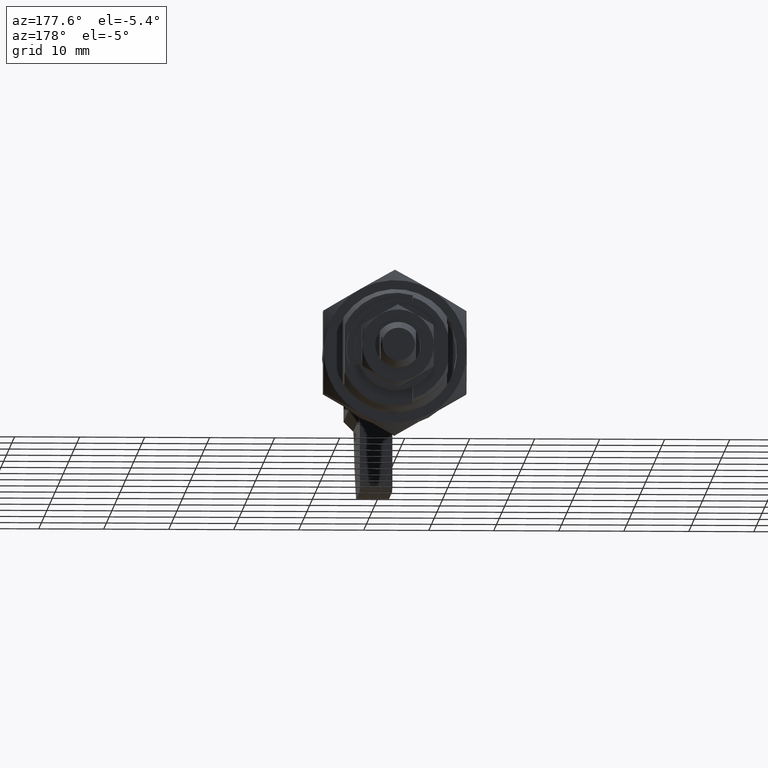
[diagram: clean part render]
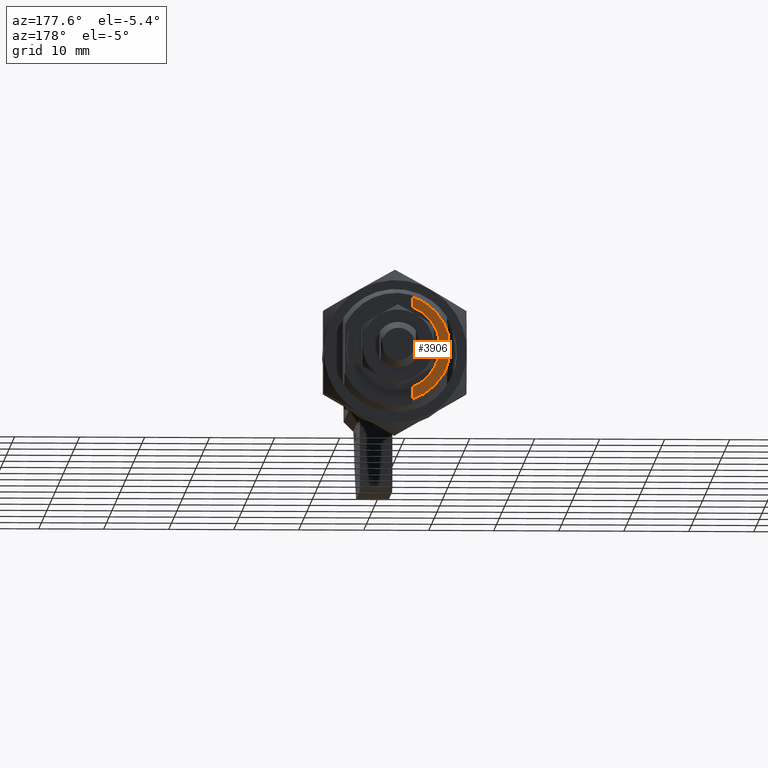
[diagram: same view with one face highlighted and labeled with its STEP entity id]
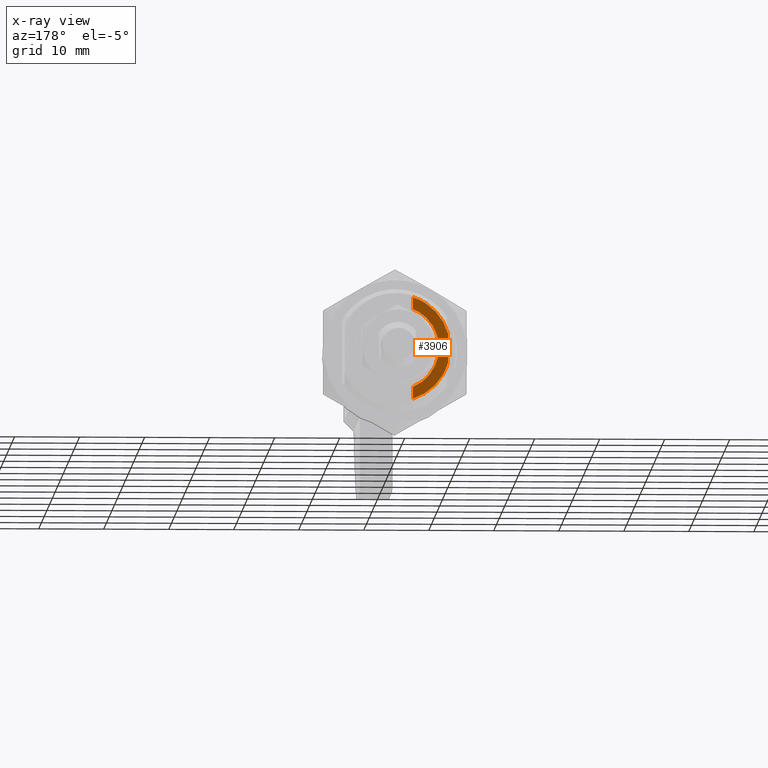
[diagram: x-ray of the same camera — body ghosted, the highlighted face saturated]
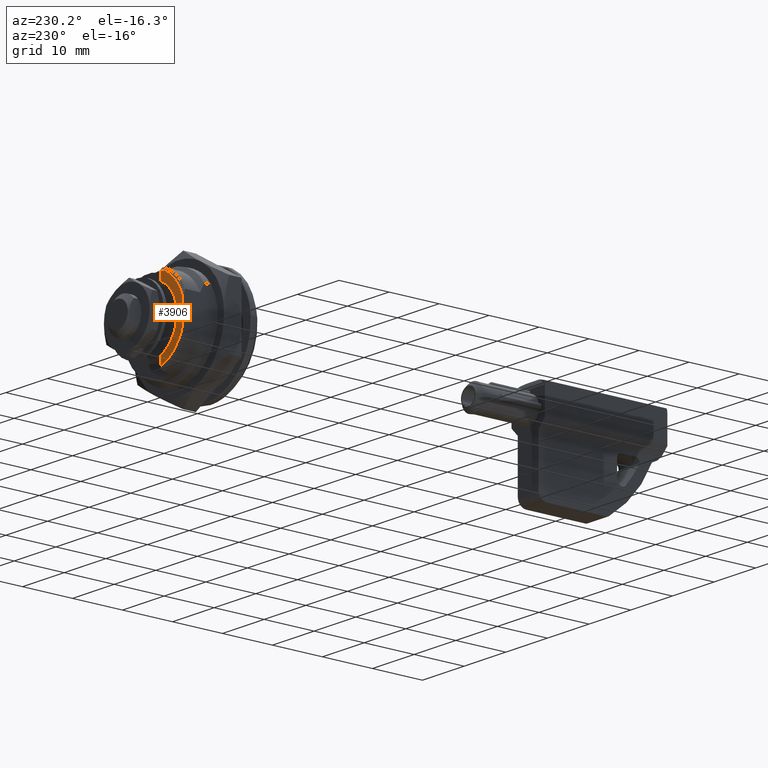
[diagram: same view with one face highlighted and labeled with its STEP entity id]
A machine part, auxiliary view. The second image highlights one B-rep face of the part: STEP entity #3906.
The next image is the same camera in x-ray: the body ghosted, the highlighted face saturated — about 0% of this face is hidden behind the body in this view.
A second angle (auxiliary view) of the same face is appended — the face is thin or edge-on in the first view.
In plain terms, the highlighted face is a freeform B-spline surface patch.
Its self-contained STEP definition (entity closure, byte-faithful):
#3747=CARTESIAN_POINT('',(-7.900000000000000,11.199999999999999,2.197726097584000));
#3748=VERTEX_POINT('',#3747);
#3771=CARTESIAN_POINT('',(-2.499999999999944,11.199999999999999,7.809609465267920));
#3772=VERTEX_POINT('',#3771);
#3780=CARTESIAN_POINT('',(-7.900000000000000,11.199999999999999,2.197726097584000));
#3781=CARTESIAN_POINT('',(-6.714097833292629,11.199999999999999,6.460599040343909));
#3782=CARTESIAN_POINT('',(-2.499999999999942,11.199999999999999,7.809609465267920));
#3790=(BOUNDED_CURVE()B_SPLINE_CURVE(2,(#3780,#3781,#3782),.UNSPECIFIED.,.F.,.U.)CURVE()GEOMETRIC_REPRESENTATION_ITEM()QUASI_UNIFORM_CURVE()RATIONAL_B_SPLINE_CURVE((1.0,0.880050996870170,1.0))REPRESENTATION_ITEM(''));
#3791=EDGE_CURVE('',#3748,#3772,#3790,.T.);
#3812=CARTESIAN_POINT('',(-2.500000000000114,11.199999999999999,-7.809609465267610));
#3813=VERTEX_POINT('',#3812);
#3836=CARTESIAN_POINT('',(-7.900000000000000,11.199999999999999,-2.197726097583745));
#3837=VERTEX_POINT('',#3836);
#3845=CARTESIAN_POINT('',(-2.500000000000114,11.199999999999999,-7.809609465267610));
#3846=CARTESIAN_POINT('',(-6.714097833292660,11.199999999999999,-6.460599040343544));
#3847=CARTESIAN_POINT('',(-7.899999999999927,11.199999999999999,-2.197726097583725));
#3855=(BOUNDED_CURVE()B_SPLINE_CURVE(2,(#3845,#3846,#3847),.UNSPECIFIED.,.F.,.U.)CURVE()GEOMETRIC_REPRESENTATION_ITEM()QUASI_UNIFORM_CURVE()RATIONAL_B_SPLINE_CURVE((1.0,0.880050996870175,1.0))REPRESENTATION_ITEM(''));
#3856=EDGE_CURVE('',#3813,#3837,#3855,.T.);
#3861=CARTESIAN_POINT('',(-2.230270010466188,11.199999999999999,-8.589789420574782));
#3862=CARTESIAN_POINT('',(-8.169730134373042,11.199999999999999,-8.589789420574782));
#3863=CARTESIAN_POINT('',(-2.230270010466188,11.199999999999999,8.589789839515191));
#3864=CARTESIAN_POINT('',(-8.169730134373042,11.199999999999999,8.589789839515191));
#3865=B_SPLINE_SURFACE_WITH_KNOTS('',1,1,((#3861,#3863),(#3862,#3864)),.UNSPECIFIED.,.F.,.F.,.U.,(2,2),(2,2),(0.0,5.939460123906853),(0.0,17.179579260089969),.UNSPECIFIED.);
#3866=CARTESIAN_POINT('',(-2.500000000000114,11.199999999999999,-5.999999999999840));
#3867=VERTEX_POINT('',#3866);
#3868=CARTESIAN_POINT('',(-2.500000000000114,11.199999999999999,-5.999999999999840));
#3869=CARTESIAN_POINT('',(-2.500000000000114,11.199999999999999,-7.809609465267610));
#3870=QUASI_UNIFORM_CURVE('',1,(#3868,#3869),.UNSPECIFIED.,.F.,.U.);
#3871=EDGE_CURVE('',#3867,#3813,#3870,.T.);
#3872=ORIENTED_EDGE('',*,*,#3871,.T.);
#3873=ORIENTED_EDGE('',*,*,#3856,.T.);
#3874=CARTESIAN_POINT('',(-7.900000000000000,11.199999999999999,-2.197726097583745));
#3875=CARTESIAN_POINT('',(-7.900000000000000,11.199999999999999,2.197726097584000));
#3876=QUASI_UNIFORM_CURVE('',1,(#3874,#3875),.UNSPECIFIED.,.F.,.U.);
#3877=EDGE_CURVE('',#3837,#3748,#3876,.T.);
#3878=ORIENTED_EDGE('',*,*,#3877,.T.);
#3879=ORIENTED_EDGE('',*,*,#3791,.T.);
#3880=CARTESIAN_POINT('',(-2.499999999999944,11.199999999999999,6.000000000000091));
#3881=VERTEX_POINT('',#3880);
#3882=CARTESIAN_POINT('',(-2.499999999999944,11.199999999999999,7.809609465267920));
#3883=CARTESIAN_POINT('',(-2.499999999999944,11.199999999999999,6.000000000000091));
#3884=QUASI_UNIFORM_CURVE('',1,(#3882,#3883),.UNSPECIFIED.,.F.,.U.);
#3885=EDGE_CURVE('',#3772,#3881,#3884,.T.);
#3886=ORIENTED_EDGE('',*,*,#3885,.T.);
#3887=CARTESIAN_POINT('',(-2.500000000000114,11.199999999999999,-5.999999999999840));
#3888=CARTESIAN_POINT('',(-3.161720940819983,11.199999999999980,-5.724722770549773));
#3889=CARTESIAN_POINT('',(-4.118599172749096,11.200000000000040,-5.123768001350356));
#3890=CARTESIAN_POINT('',(-5.267370455003888,11.199999999999960,-3.898883496383194));
#3891=CARTESIAN_POINT('',(-5.940386211839968,11.200000000000070,-2.757892486987514));
#3892=CARTESIAN_POINT('',(-6.407468290837881,11.199999999999980,-1.355480133136228));
#3893=CARTESIAN_POINT('',(-6.571062438678637,11.199999999999971,0.120769799944025));
#3894=CARTESIAN_POINT('',(-6.359281196261014,11.200000000000109,1.550274389268267));
#3895=CARTESIAN_POINT('',(-5.922177974745818,11.199999999999790,2.750662481984010));
#3896=CARTESIAN_POINT('',(-5.371326600691424,11.200000000000101,3.725221808750568));
#3897=CARTESIAN_POINT('',(-4.651601698008972,11.200000000000021,4.582705223861530));
#3898=CARTESIAN_POINT('',(-3.710808083918690,11.199999999999889,5.386699848529958));
#3899=CARTESIAN_POINT('',(-2.977801801432767,11.200000000000120,5.801063169830389));
#3900=CARTESIAN_POINT('',(-2.499999999999944,11.199999999999999,6.000000000000091));
#3901=B_SPLINE_CURVE_WITH_KNOTS('',3,(#3887,#3888,#3889,#3890,#3891,#3892,#3893,#3894,#3895,#3896,#3897,#3898,#3899,#3900),.UNSPECIFIED.,.F.,.U.,(4,1,1,1,1,1,1,1,1,1,1,4),(0.000000321914323,2.149915118924989,3.344301639506300,5.016475345717197,6.091492056349431,7.763541466983658,9.435725264812440,10.391221501138920,11.585653614217691,12.780057155015591,13.735621574305080,15.288282745298430),.UNSPECIFIED.);
#3902=EDGE_CURVE('',#3867,#3881,#3901,.T.);
#3903=ORIENTED_EDGE('',*,*,#3902,.F.);
#3904=EDGE_LOOP('',(#3872,#3873,#3878,#3879,#3886,#3903));
#3905=FACE_OUTER_BOUND('',#3904,.T.);
#3906=ADVANCED_FACE('',(#3905),#3865,.T.);